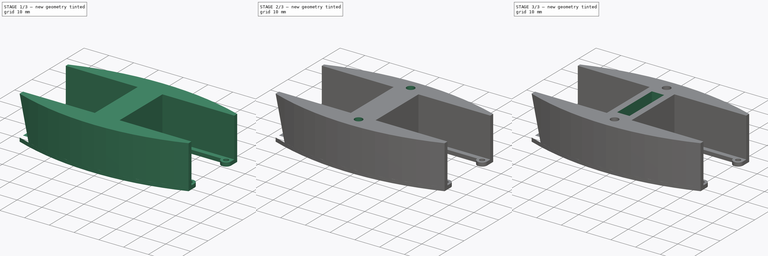
[diagram: build sequence overview — one tinted view per stage of 3, left to right]
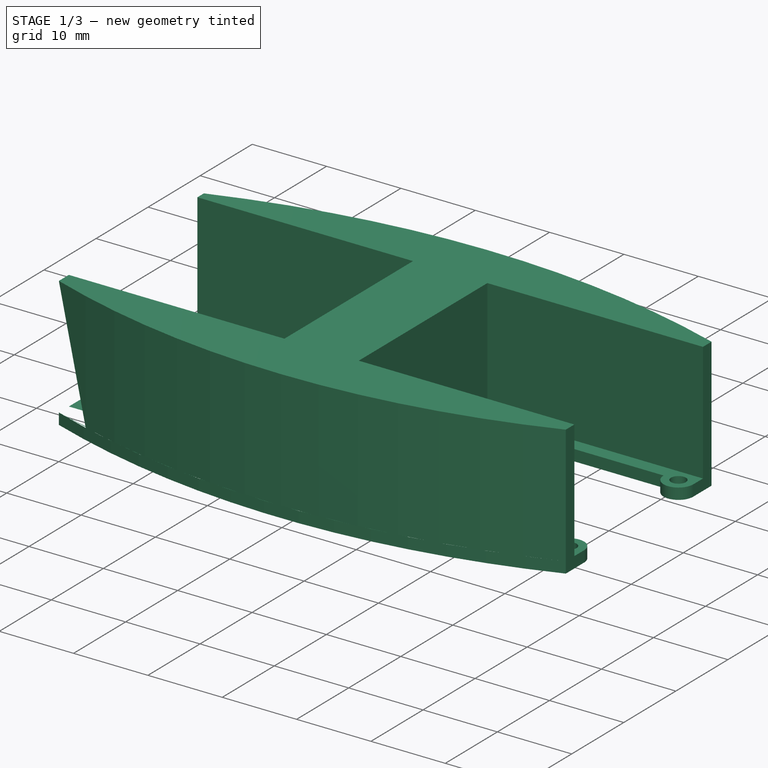
[diagram: stage 1 of 3 — iso view after this stage's code; geometry added in this stage tinted green]
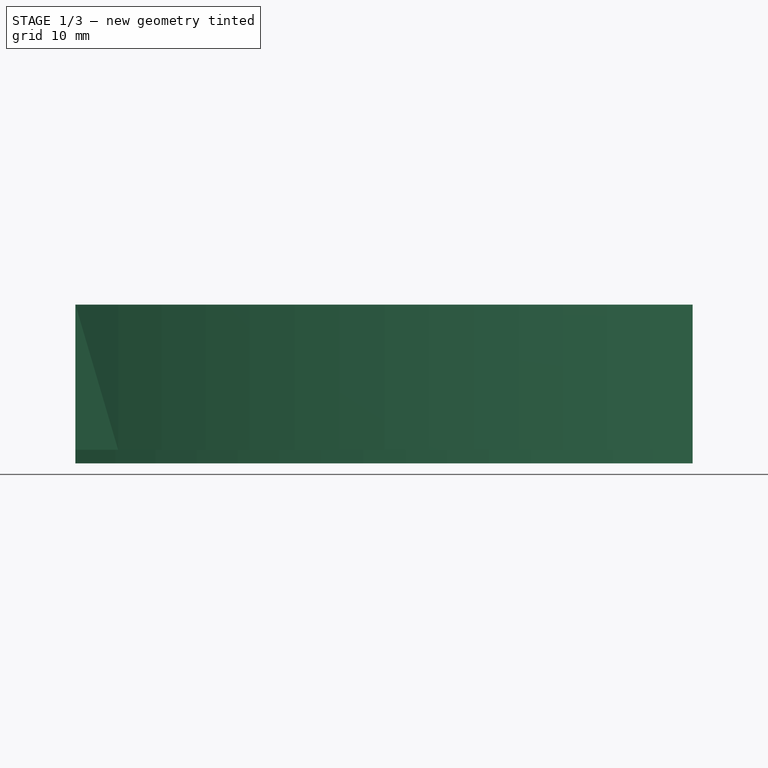
[diagram: stage 1 of 3 — front view after this stage's code; geometry added in this stage tinted green]
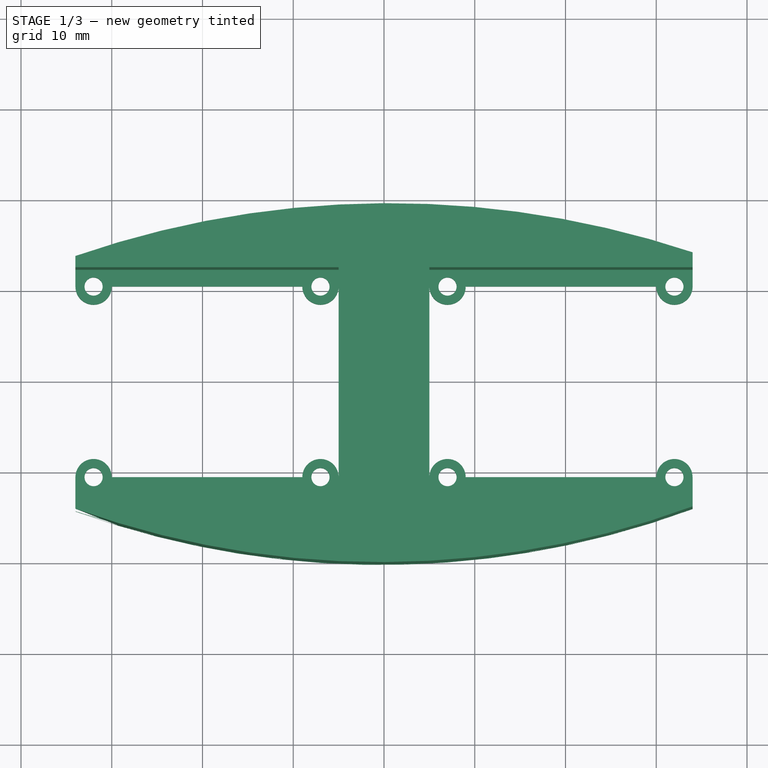
[diagram: stage 1 of 3 — top view after this stage's code; geometry added in this stage tinted green]
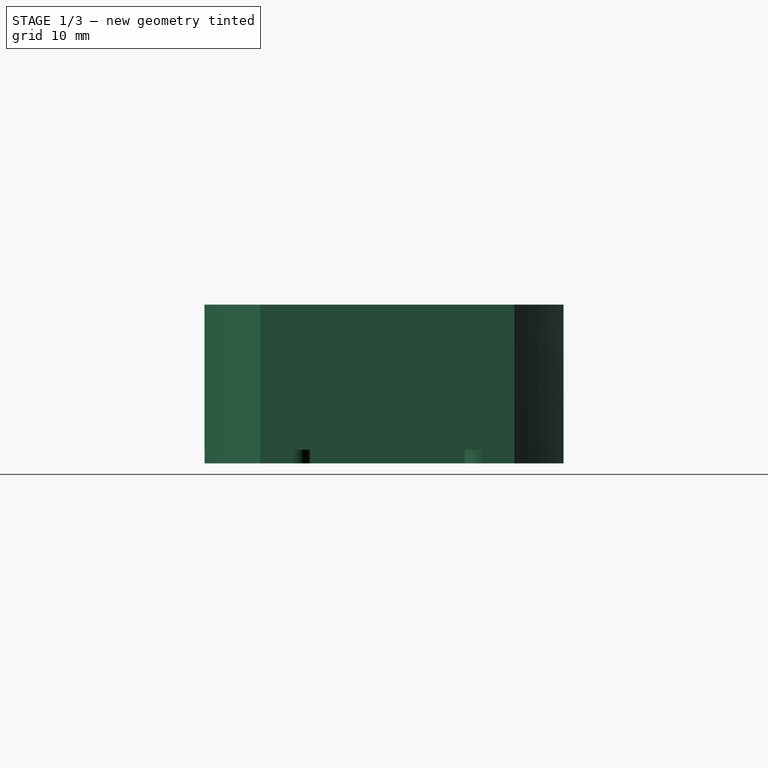
[diagram: stage 1 of 3 — right view after this stage's code; geometry added in this stage tinted green]
FCSTD DOCUMENT  (FreeCAD 0.16R6712 (Git))
Label: 1-2
License: All rights reserved
LicenseURL: http://en.wikipedia.org/wiki/All_rights_reserved
objects: Sketcher::SketchObject×6, PartDesign::Pocket×3, PartDesign::Pad×2
note: 16 computed .brp shape members not serialized (recipe doc carries the construction recipe); baked Part::Feature solids carry a one-line shape summary decoded from their .brp

FEATURE [Sketcher::SketchObject] Sketch
  sketch-geometry (28):
    g0: Circle CenterX=7 CenterY=10.5 CenterZ=0 NormalX=0 NormalY=0 NormalZ=1 Radius=1
    g1: Circle CenterX=7 CenterY=-10.5 CenterZ=0 NormalX=0 NormalY=0 NormalZ=1 Radius=1
    g2: Circle CenterX=32 CenterY=10.5 CenterZ=0 NormalX=0 NormalY=0 NormalZ=1 Radius=1
    g3: Circle CenterX=32 CenterY=-10.5 CenterZ=0 NormalX=0 NormalY=0 NormalZ=1 Radius=1
    g4: LineSegment StartX=9 StartY=10.5 StartZ=0 EndX=30 EndY=10.5 EndZ=0
    g5: ArcOfCircle CenterX=7 CenterY=10.5 CenterZ=0 NormalX=0 NormalY=0 NormalZ=1 Radius=2 StartAngle=3.14159 EndAngle=6.28319
    g6: LineSegment StartX=9 StartY=-10.5 StartZ=0 EndX=30 EndY=-10.5 EndZ=0
    g7: ArcOfCircle CenterX=7 CenterY=-10.5 CenterZ=0 NormalX=0 NormalY=0 NormalZ=1 Radius=2 StartAngle=0 EndAngle=3.14159
    g8: LineSegment StartX=34 StartY=-10.5 StartZ=0 EndX=34 EndY=-14 EndZ=0
    g9: ArcOfCircle CenterX=32 CenterY=-10.5 CenterZ=0 NormalX=0 NormalY=0 NormalZ=1 Radius=2 StartAngle=0 EndAngle=3.14159
    g10: LineSegment StartX=34 StartY=10.5 StartZ=0 EndX=34 EndY=14 EndZ=0
    g11: ArcOfCircle CenterX=32 CenterY=10.5 CenterZ=0 NormalX=0 NormalY=0 NormalZ=1 Radius=2 StartAngle=3.14159 EndAngle=6.28319
    g12: Circle CenterX=-7 CenterY=10.5 CenterZ=0 NormalX=0 NormalY=0 NormalZ=1 Radius=1
    g13: Circle CenterX=-7 CenterY=-10.5 CenterZ=0 NormalX=0 NormalY=0 NormalZ=1 Radius=1
    g14: Circle CenterX=-32 CenterY=10.5 CenterZ=0 NormalX=0 NormalY=0 NormalZ=1 Radius=1
    g15: Circle CenterX=-32 CenterY=-10.5 CenterZ=0 NormalX=0 NormalY=0 NormalZ=1 Radius=1
    g16: LineSegment StartX=-9 StartY=10.5 StartZ=0 EndX=-30 EndY=10.5 EndZ=0
    g17: ArcOfCircle CenterX=-7 CenterY=10.5 CenterZ=0 NormalX=0 NormalY=0 NormalZ=1 Radius=2 StartAngle=3.14159 EndAngle=6.28319
    g18: LineSegment StartX=-9 StartY=-10.5 StartZ=0 EndX=-30 EndY=-10.5 EndZ=0
    g19: ArcOfCircle CenterX=-7 CenterY=-10.5 CenterZ=0 NormalX=0 NormalY=0 NormalZ=1 Radius=2 StartAngle=0 EndAngle=3.14159
    g20: LineSegment StartX=-34 StartY=-10.5 StartZ=0 EndX=-34 EndY=-14.2741 EndZ=0
    g21: ArcOfCircle CenterX=-32 CenterY=-10.5 CenterZ=0 NormalX=0 NormalY=0 NormalZ=1 Radius=2 StartAngle=0 EndAngle=3.14159
    g22: LineSegment StartX=-34 StartY=10.5 StartZ=0 EndX=-34 EndY=13.5991 EndZ=0
    g23: ArcOfCircle CenterX=-32 CenterY=10.5 CenterZ=0 NormalX=0 NormalY=0 NormalZ=1 Radius=2 StartAngle=3.14159 EndAngle=6.28319
    g24: ArcOfCircle CenterX=-0.375389 CenterY=78.9905 CenterZ=0 NormalX=0 NormalY=0 NormalZ=1 Radius=99.1408 StartAngle=4.36636 EndAngle=5.06647
    g25: ArcOfCircle CenterX=0.590407 CenterY=-86.3335 CenterZ=0 NormalX=0 NormalY=0 NormalZ=1 Radius=105.75 StartAngle=1.24936 EndAngle=1.90403
    g26: LineSegment StartX=-5 StartY=10.5 StartZ=0 EndX=-5 EndY=-10.5 EndZ=0
    g27: LineSegment StartX=5 StartY=10.5 StartZ=0 EndX=5 EndY=-10.5 EndZ=0
  constraints (74):
    c: Symmetric(g1,g0,g-1)
    c: Symmetric(g2,g3,g-1)
    c: DistanceX(g0,g2) = 25
    c: DistanceY(g1,g0) = 21
    c: DistanceY(g3,g2) = 21
    c: Radius(g1) = 1
    c: Equal(g1,g0)
    c: Equal(g1,g2)
    c: Equal(g1,g3)
    c: Horizontal(g4)
    c: DistanceX(g0,g4) = 2
    c: DistanceY(g4,g0) = 0
    c: DistanceY(g5,g0) = 0
    c: Coincident(g5,g0)
    c: Coincident(g5,g4)
    c: Symmetric(g7,g5,g-1)
    c: Horizontal(g6)
    c: Symmetric(g6,g4,g-1)
    c: Symmetric(g6,g4,g-1)
    c: Coincident(g7,g1)
    c: Coincident(g7,g6)
    c: Vertical(g8)
    c: DistanceX(g3,g8) = 2
    c: DistanceY(g8,g3) = 0
    c: DistanceY(g8,g8) = 3.5
    c: Coincident(g9,g3)
    c: Coincident(g9,g6)
    c: Coincident(g9,g8)
    c: Vertical(g10)
    c: DistanceY(g10,g2) = 0
    c: DistanceX(g2,g10) = 2
    c: DistanceY(g10,g10) = 3.5
    c: Coincident(g11,g2)
    c: Coincident(g11,g4)
    c: Coincident(g11,g10)
    c: Radius(g13) = 1
    c: Equal(g13,g12)
    c: Equal(g13,g14)
    c: Equal(g13,g15)
    c: Horizontal(g16)
    c: Coincident(g17,g12)
    c: Coincident(g17,g16)
    c: Horizontal(g18)
    c: Coincident(g19,g13)
    c: Coincident(g19,g18)
    c: Vertical(g20)
    c: Coincident(g21,g15)
    c: Coincident(g21,g18)
    c: Coincident(g21,g20)
    c: Vertical(g22)
    c: Coincident(g23,g14)
    c: Coincident(g23,g16)
    c: Coincident(g23,g22)
    c: Coincident(g24,g20)
    c: Coincident(g24,g8)
    c: Coincident(g25,g22)
    c: Coincident(g25,g10)
    c: DistanceX(g14,g12) = 25
    c: DistanceX(g15,g13) = 25
    c: Equal(g17,g11)
    c: Equal(g17,g9)
    c: Equal(g17,g7)
    c: Equal(g17,g19)
    c: Equal(g17,g21)
    c: Equal(g17,g23)
    c: Symmetric(g5,g17,g-2)
    c: DistanceX(g17,g5) = 10
    c: Symmetric(g19,g7,g-2)
    c: Coincident(g26,g17)
    c: Coincident(g26,g19)
    c: Vertical(g26)
    c: Tangent(g26,g17)
    c: Coincident(g27,g5)
    c: Coincident(g27,g7)
FEATURE [PartDesign::Pad] Pad
  Length = 1.5
  Length2 = 100
  Sketch = -> Sketch
  Type = 0
FEATURE [Sketcher::SketchObject] Sketch001
  ExternalGeometry = -> [Pad]
  Placement = pos=(0,0,1.5) rot=(0,0,1;0rad)
  Support = -> Pad [Face34]
  sketch-geometry (21):
    g0: GeomPoint [constr] X=34 Y=12.35 Z=0
    g1: GeomPoint [constr] X=34 Y=-12.35 Z=0
    g2: GeomPoint [constr] X=-34 Y=12.35 Z=0
    g3: GeomPoint [constr] X=-34 Y=-12.35 Z=0
    g4: LineSegment StartX=-34 StartY=12.35 StartZ=0 EndX=-5 EndY=12.35 EndZ=0
    g5: LineSegment StartX=-5 StartY=12.35 StartZ=0 EndX=-5 EndY=10.5 EndZ=0
    g6: LineSegment StartX=-5 StartY=10.5 StartZ=0 EndX=-5 EndY=-10.5 EndZ=0
    g7: LineSegment StartX=-5 StartY=-10.5 StartZ=0 EndX=-5 EndY=-12.35 EndZ=0
    g8: LineSegment StartX=-34 StartY=-12.35 StartZ=0 EndX=-5 EndY=-12.35 EndZ=0
    g9: LineSegment StartX=34 StartY=12.35 StartZ=0 EndX=5 EndY=12.35 EndZ=0
    g10: LineSegment StartX=5 StartY=12.35 StartZ=0 EndX=5 EndY=10.5 EndZ=0
    g11: LineSegment StartX=5 StartY=10.5 StartZ=0 EndX=5 EndY=-10.5 EndZ=0
    g12: LineSegment StartX=5 StartY=-10.5 StartZ=0 EndX=5 EndY=-12.35 EndZ=0
    g13: LineSegment StartX=34 StartY=-12.35 StartZ=0 EndX=5 EndY=-12.35 EndZ=0
    g14: LineSegment StartX=-34 StartY=-12.35 StartZ=0 EndX=-34 EndY=-14.2659 EndZ=0
    g15: LineSegment StartX=34 StartY=-12.35 StartZ=0 EndX=34 EndY=-14 EndZ=0
    g16: LineSegment StartX=34 StartY=12.35 StartZ=0 EndX=34 EndY=14 EndZ=0
    g17: GeomPoint [constr] X=-2.11915e-05 Y=-20.144 Z=0
    g18: ArcOfCircle CenterX=-0.364308 CenterY=79.02 CenterZ=0 NormalX=0 NormalY=0 NormalZ=1 Radius=99.1646 StartAngle=4.36633 EndAngle=5.06627
    g19: ArcOfCircle CenterX=0.598027 CenterY=-86.3696 CenterZ=0 NormalX=0 NormalY=0 NormalZ=1 Radius=105.782 StartAngle=1.24953 EndAngle=1.904
    g20: LineSegment StartX=-34 StartY=13.594 StartZ=0 EndX=-34 EndY=12.35 EndZ=0
  constraints (46):
    c: PointOnObject(g0,g-4)
    c: PointOnObject(g1,g-3)
    c: Symmetric(g1,g0,g-1)
    c: DistanceY(g1,g0) = 24.7
    c: PointOnObject(g2,g-8)
    c: Symmetric(g3,g2,g-1)
    c: DistanceY(g3,g2) = 24.7
    c: Coincident(g4,g2)
    c: Horizontal(g4)
    c: Coincident(g5,g4)
    c: Coincident(g5,g-9)
    c: Coincident(g6,g5)
    c: Coincident(g6,g-10)
    c: Coincident(g7,g6)
    c: Coincident(g8,g3)
    c: Coincident(g8,g7)
    c: Horizontal(g8)
    c: Coincident(g9,g0)
    c: Horizontal(g9)
    c: Coincident(g10,g9)
    c: Coincident(g10,g-12)
    c: Vertical(g5)
    c: Vertical(g7)
    c: Coincident(g11,g10)
    c: Coincident(g11,g-11)
    c: Coincident(g12,g11)
    c: Coincident(g13,g1)
    c: Coincident(g13,g12)
    c: Horizontal(g13)
    c: Vertical(g12)
    c: Vertical(g10)
    c: Coincident(g14,g3)
    c: Coincident(g14,g-7)
    c: Coincident(g15,g1)
    c: Coincident(g15,g-5)
    c: Coincident(g16,g0)
    c: Coincident(g16,g-6)
    c: PointOnObject(g17,g-5)
    c: Coincident(g18,g14)
    c: Coincident(g18,g15)
    c: PointOnObject(g17,g18)
    c: Coincident(g19,g-8)
    c: Coincident(g19,g16)
    c: Tangent(g19,g-6)
    c: Coincident(g20,g19)
    c: Coincident(g20,g2)
FEATURE [PartDesign::Pad] Pad001
  Length = 16
  Length2 = 100
  Sketch = -> Sketch001
  Type = 0
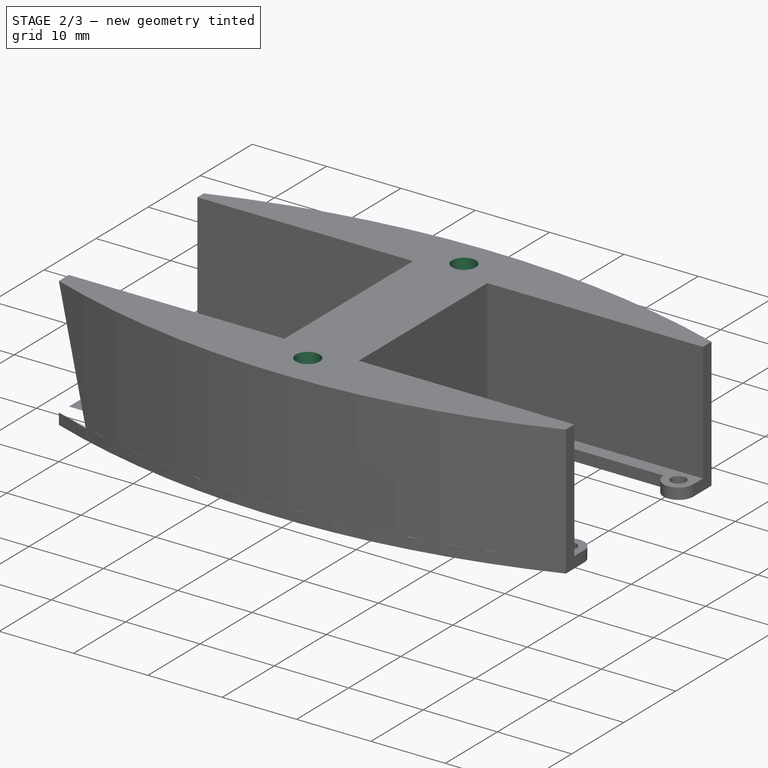
[diagram: stage 2 of 3 — iso view after this stage's code; geometry added in this stage tinted green]
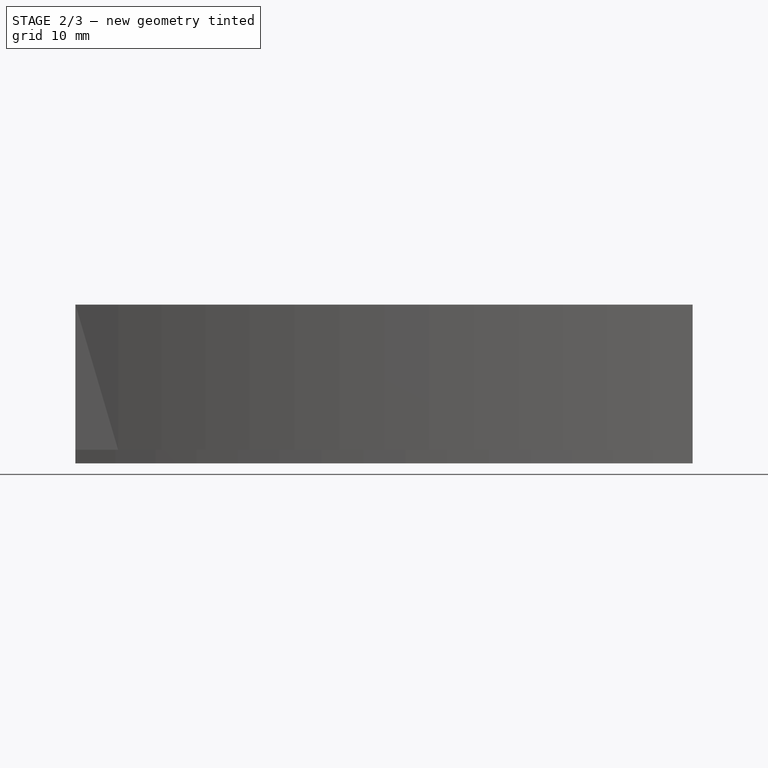
[diagram: stage 2 of 3 — front view after this stage's code; geometry added in this stage tinted green]
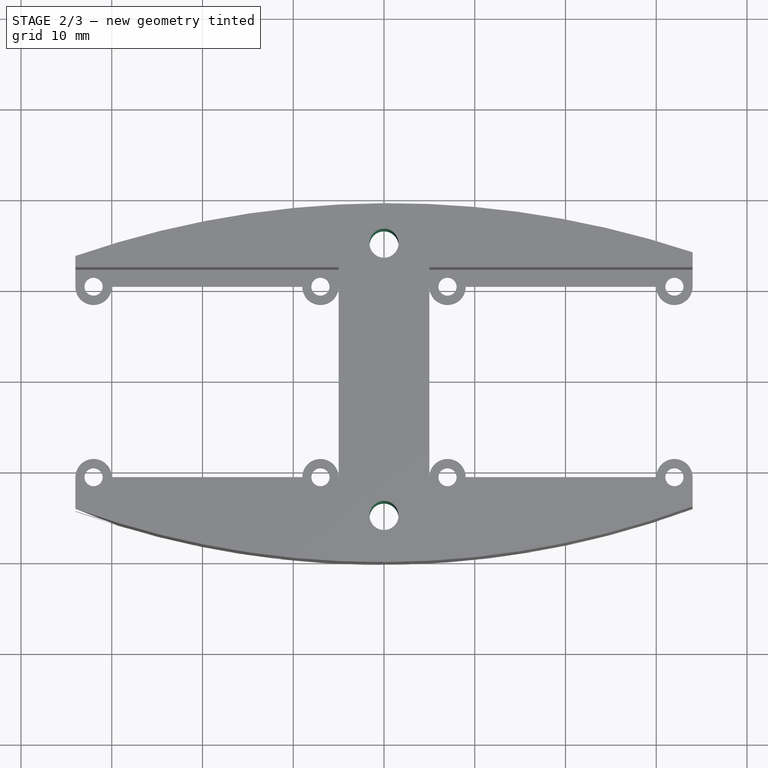
[diagram: stage 2 of 3 — top view after this stage's code; geometry added in this stage tinted green]
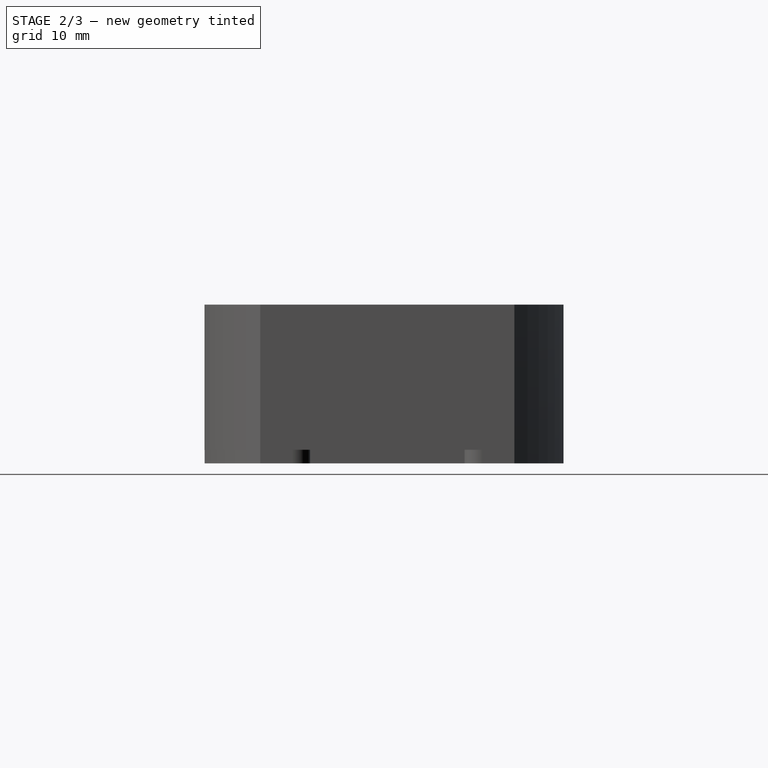
[diagram: stage 2 of 3 — right view after this stage's code; geometry added in this stage tinted green]
FEATURE [Sketcher::SketchObject] Sketch002
  Placement = pos=(0,0,0) rot=(1,0,0;3.14159rad)
  Support = -> Pad001 [Face1]
  sketch-geometry (2):
    g0: Circle CenterX=0 CenterY=15 CenterZ=0 NormalX=0 NormalY=0 NormalZ=1 Radius=1.6
    g1: Circle CenterX=0 CenterY=-15 CenterZ=0 NormalX=0 NormalY=0 NormalZ=1 Radius=1.6
  constraints (6):
    c: PointOnObject(g0,g-2)
    c: PointOnObject(g1,g-2)
    c: Radius(g1) = 1.6
    c: Equal(g1,g0)
    c: Symmetric(g1,g0,g-1)
    c: DistanceY(g1,g0) = 30
FEATURE [Sketcher::SketchObject] Sketch004
  Placement = pos=(0,0,0) rot=(1,0,0;3.14159rad)
  Support = -> Pad001 [Face1]
  sketch-geometry (4):
    g0: LineSegment StartX=-2.4 StartY=7.4 StartZ=0 EndX=2.4 EndY=7.4 EndZ=0
    g1: LineSegment StartX=2.4 StartY=7.4 StartZ=0 EndX=2.4 EndY=-7.4 EndZ=0
    g2: LineSegment StartX=2.4 StartY=-7.4 StartZ=0 EndX=-2.4 EndY=-7.4 EndZ=0
    g3: LineSegment StartX=-2.4 StartY=-7.4 StartZ=0 EndX=-2.4 EndY=7.4 EndZ=0
  constraints (12):
    c: Coincident(g0,g1)
    c: Coincident(g1,g2)
    c: Coincident(g2,g3)
    c: Coincident(g3,g0)
    c: Horizontal(g0)
    c: Horizontal(g2)
    c: Vertical(g1)
    c: Vertical(g3)
    c: DistanceY(g1,g0) = 14.8
    c: DistanceX(g0,g0) = 4.8
    c: Symmetric(g0,g0,g-2)
    c: Symmetric(g1,g0,g-1)
FEATURE [PartDesign::Pocket] Pocket
  Length = 40
  Sketch = -> Sketch002
  Type = 0
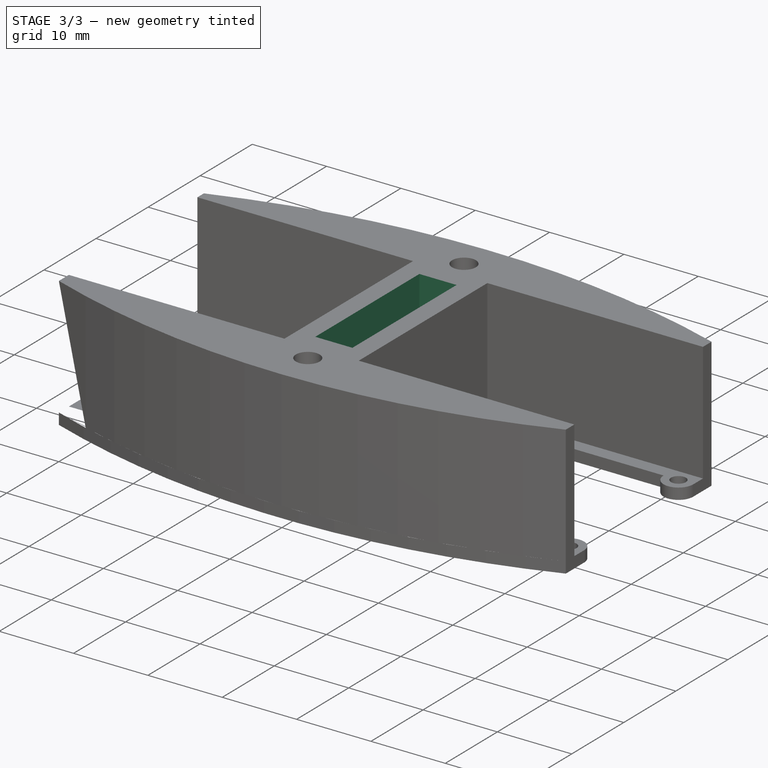
[diagram: stage 3 of 3 — iso view after this stage's code; geometry added in this stage tinted green]
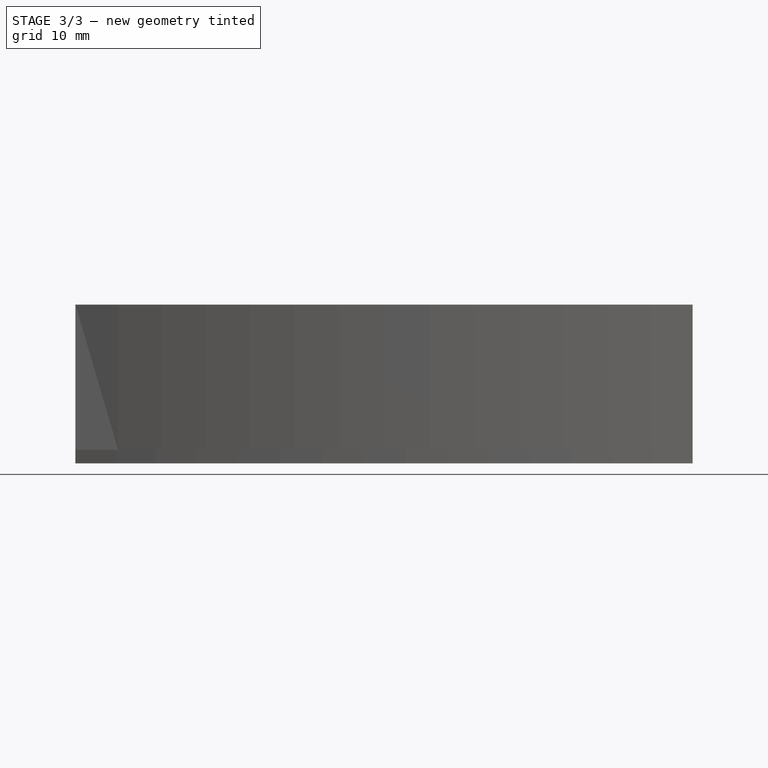
[diagram: stage 3 of 3 — front view after this stage's code; geometry added in this stage tinted green]
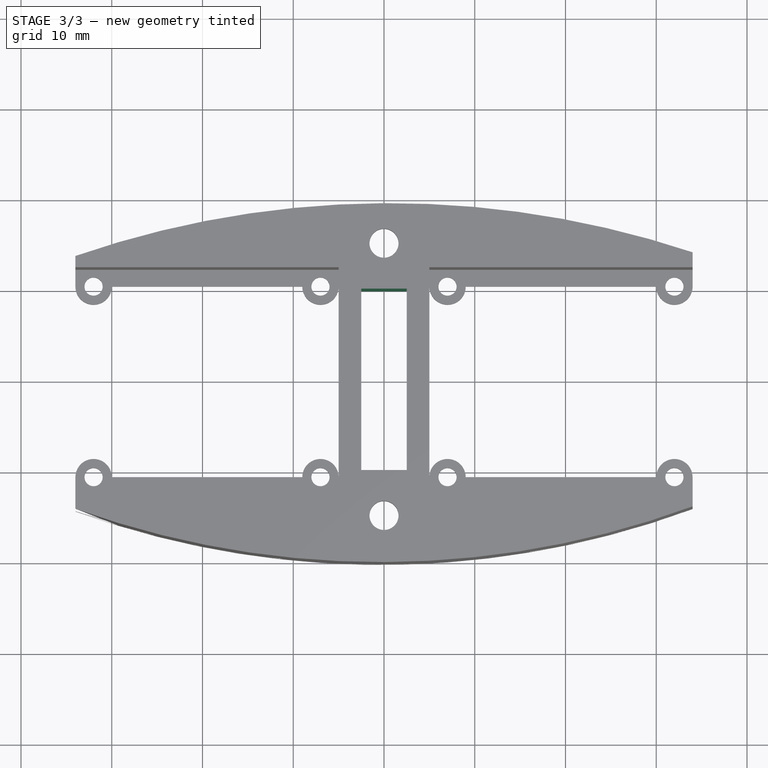
[diagram: stage 3 of 3 — top view after this stage's code; geometry added in this stage tinted green]
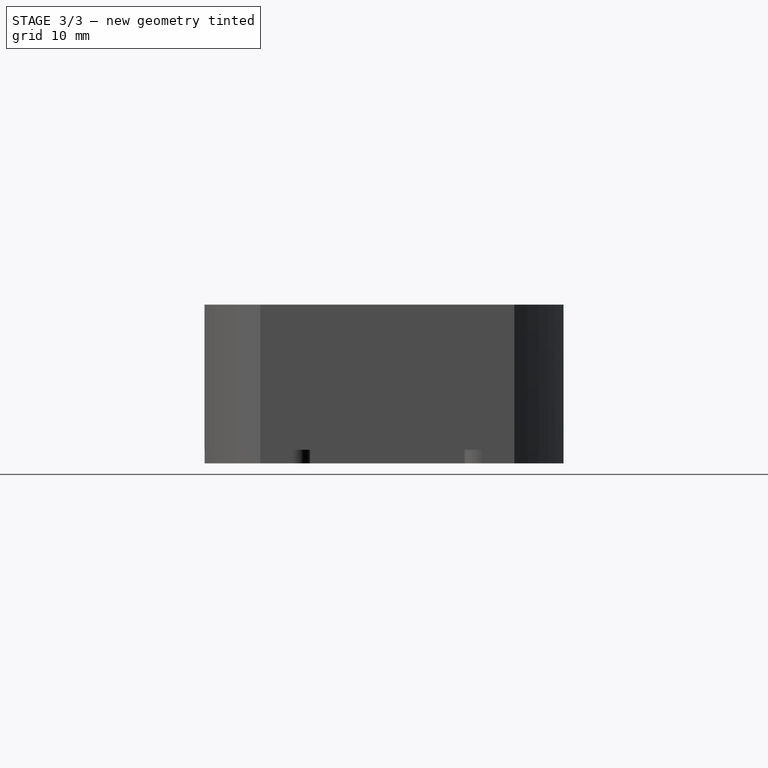
[diagram: stage 3 of 3 — right view after this stage's code; geometry added in this stage tinted green]
FEATURE [Sketcher::SketchObject] Sketch005
  ExternalGeometry = -> [Pocket]
  Placement = pos=(0,0,0) rot=(1,0,0;3.14159rad)
  Support = -> Pocket [Face1]
  sketch-geometry (14):
    g0: LineSegment StartX=1.68094 StartY=12.2771 StartZ=0 EndX=3.19861 EndY=15.0943 EndZ=0
    g1: LineSegment StartX=3.19861 StartY=15.0943 StartZ=0 EndX=1.51768 EndY=17.8172 EndZ=0
    g2: LineSegment StartX=1.51768 StartY=17.8172 StartZ=0 EndX=-1.68094 EndY=17.7229 EndZ=0
    g3: LineSegment StartX=-1.68094 StartY=17.7229 StartZ=0 EndX=-3.19861 EndY=14.9057 EndZ=0
    g4: LineSegment StartX=-3.19861 StartY=14.9057 StartZ=0 EndX=-1.51768 EndY=12.1828 EndZ=0
    g5: LineSegment StartX=-1.51768 StartY=12.1828 StartZ=0 EndX=1.68094 EndY=12.2771 EndZ=0
    g6: Circle [constr] CenterX=0 CenterY=15 CenterZ=0 NormalX=0 NormalY=0 NormalZ=1 Radius=3.2
    g7: LineSegment StartX=1.64299 StartY=-17.746 StartZ=0 EndX=3.19961 EndY=-14.9501 EndZ=0
    g8: LineSegment StartX=3.19961 StartY=-14.9501 StartZ=0 EndX=1.55663 EndY=-12.2041 EndZ=0
    g9: LineSegment StartX=1.55663 StartY=-12.2041 StartZ=0 EndX=-1.64299 EndY=-12.254 EndZ=0
    g10: LineSegment StartX=-1.64299 StartY=-12.254 StartZ=0 EndX=-3.19961 EndY=-15.0499 EndZ=0
    g11: LineSegment StartX=-3.19961 StartY=-15.0499 StartZ=0 EndX=-1.55663 EndY=-17.7959 EndZ=0
    g12: LineSegment StartX=-1.55663 StartY=-17.7959 StartZ=0 EndX=1.64299 EndY=-17.746 EndZ=0
    g13: Circle [constr] CenterX=0 CenterY=-15 CenterZ=0 NormalX=0 NormalY=0 NormalZ=1 Radius=3.2
  constraints (30):
    c: Coincident(g0,g1)
    c: Coincident(g1,g2)
    c: Coincident(g2,g3)
    c: Coincident(g3,g4)
    c: Coincident(g4,g5)
    c: Coincident(g5,g0)
    c: Equal(g0, g1-g5) x5
    c: PointOnObject(g0,g6)
    c: PointOnObject(g1,g6)
    c: PointOnObject(g2,g6)
    c: PointOnObject(g3,g6)
    c: PointOnObject(g4,g6)
    c: PointOnObject(g5,g6)
    c: Coincident(g6,g-3)
    c: Coincident(g7,g8)
    c: Coincident(g8,g9)
    c: Coincident(g9,g10)
    c: Coincident(g10,g11)
    c: Coincident(g11,g12)
    c: Coincident(g12,g7)
    c: Equal(g7, g8-g12) x5
    c: PointOnObject(g7,g13)
    c: PointOnObject(g8,g13)
    c: PointOnObject(g9,g13)
    c: PointOnObject(g10,g13)
    c: PointOnObject(g11,g13)
    c: PointOnObject(g12,g13)
    c: Coincident(g13,g-4)
    c: Radius(g6) = 3.2
    c: Equal(g6,g13)
FEATURE [PartDesign::Pocket] Pocket001
  Length = 14.5
  Sketch = -> Sketch005
  Type = 0
FEATURE [Sketcher::SketchObject] Sketch006
  Placement = pos=(0,0,17.5) rot=(0,0,1;0rad)
  Support = -> Pocket001 [Face58]
  sketch-geometry (4):
    g0: LineSegment StartX=-2.5 StartY=10 StartZ=0 EndX=2.5 EndY=10 EndZ=0
    g1: LineSegment StartX=2.5 StartY=10 StartZ=0 EndX=2.5 EndY=-10 EndZ=0
    g2: LineSegment StartX=2.5 StartY=-10 StartZ=0 EndX=-2.5 EndY=-10 EndZ=0
    g3: LineSegment StartX=-2.5 StartY=-10 StartZ=0 EndX=-2.5 EndY=10 EndZ=0
  constraints (12):
    c: Coincident(g0,g1)
    c: Coincident(g1,g2)
    c: Coincident(g2,g3)
    c: Coincident(g3,g0)
    c: Horizontal(g0)
    c: Horizontal(g2)
    c: Vertical(g1)
    c: Vertical(g3)
    c: Symmetric(g1,g2,g-2)
    c: Symmetric(g1,g0,g-1)
    c: DistanceY(g1,g1) = 20
    c: DistanceX(g0,g0) = 5
FEATURE [PartDesign::Pocket] Pocket002
  Length = 20
  Sketch = -> Sketch006
  Type = 0
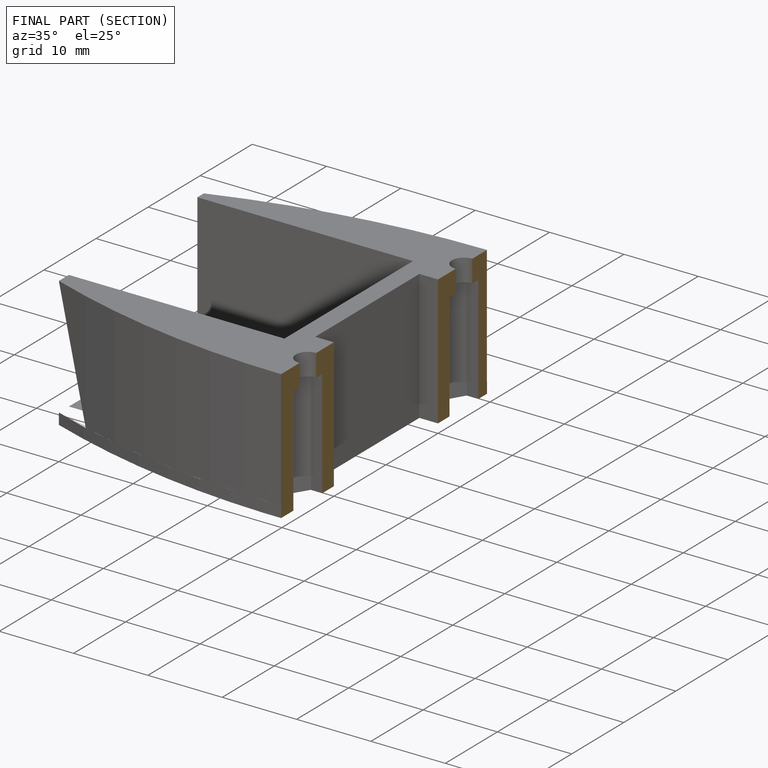
[diagram: finished part — half-section view (interior)]
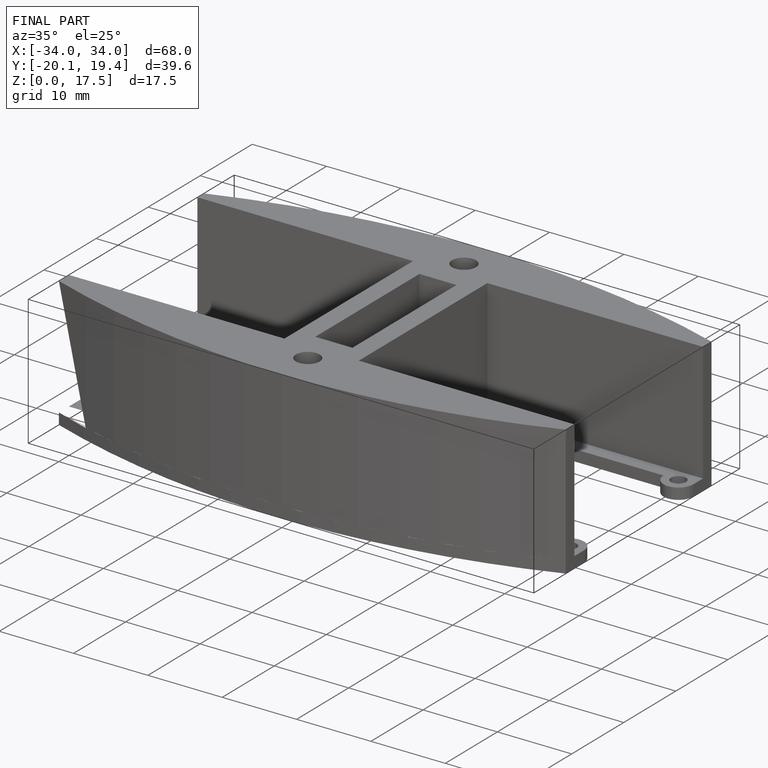
[diagram: finished part — iso view with bounding-box wireframe]
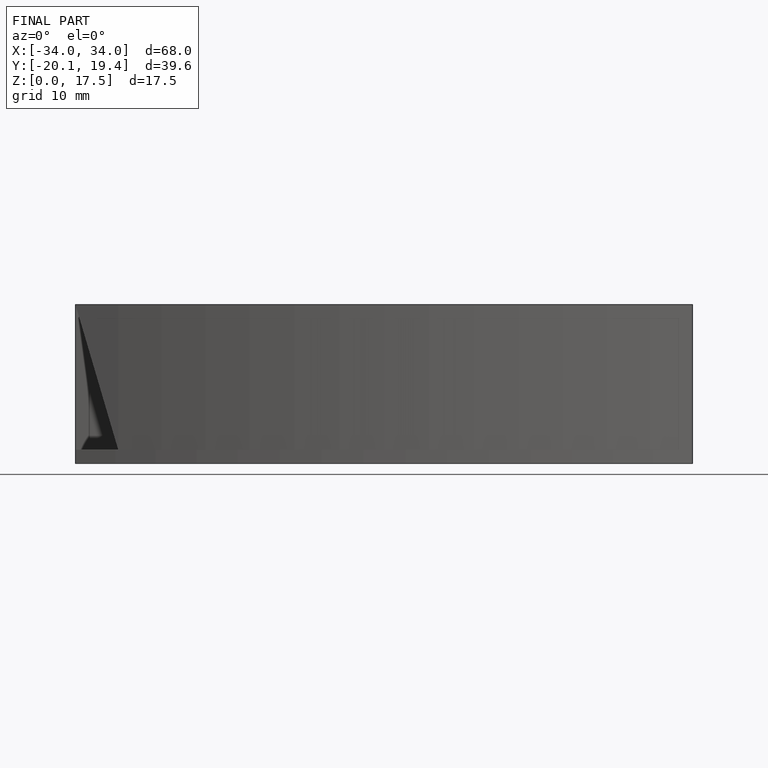
[diagram: finished part — front view with bounding-box wireframe]
